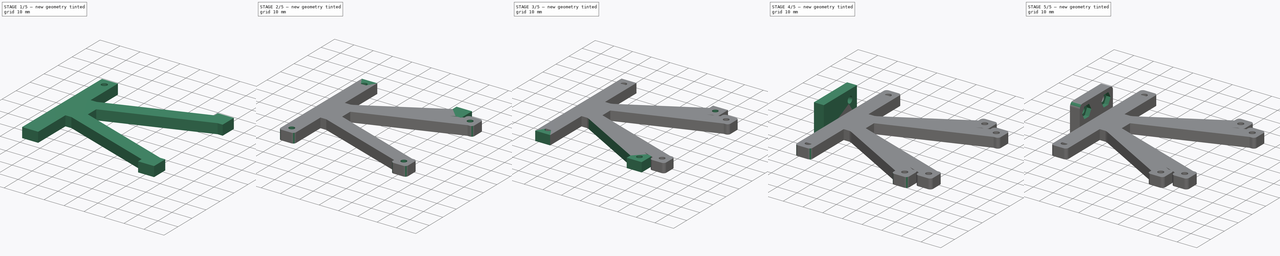
[diagram: build sequence overview — one tinted view per stage of 5, left to right]
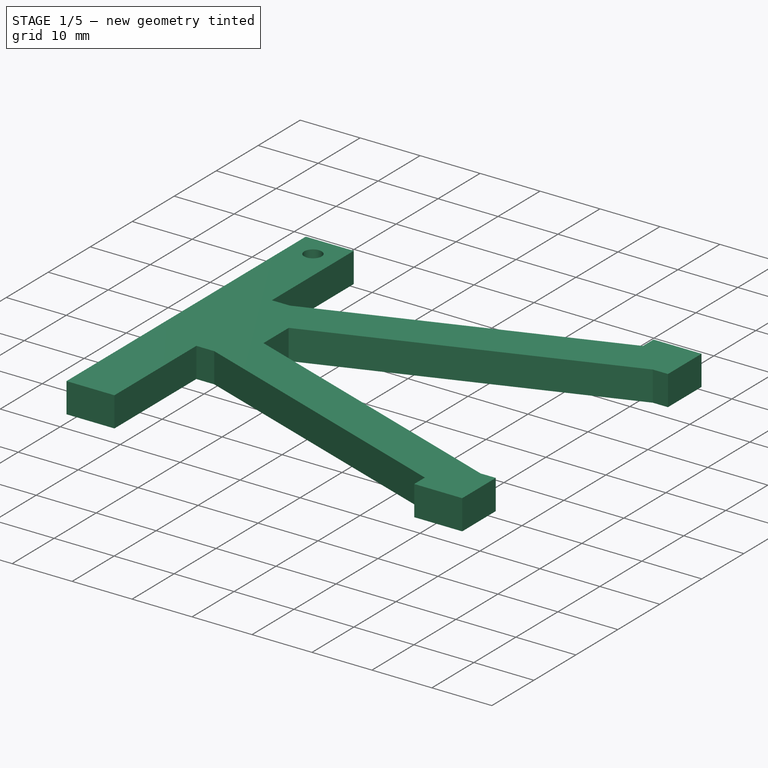
[diagram: stage 1 of 5 — iso view after this stage's code; geometry added in this stage tinted green]
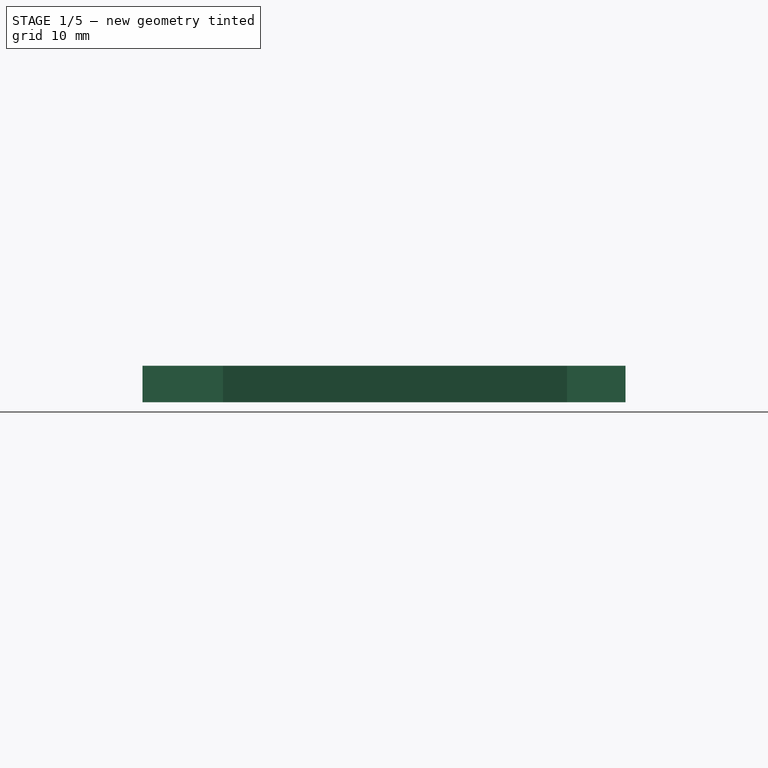
[diagram: stage 1 of 5 — front view after this stage's code; geometry added in this stage tinted green]
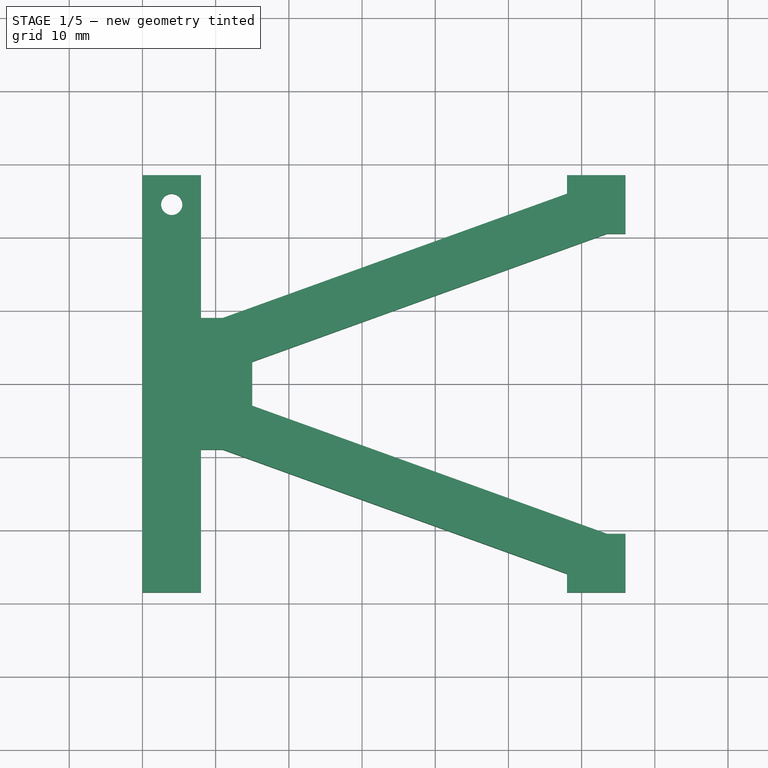
[diagram: stage 1 of 5 — top view after this stage's code; geometry added in this stage tinted green]
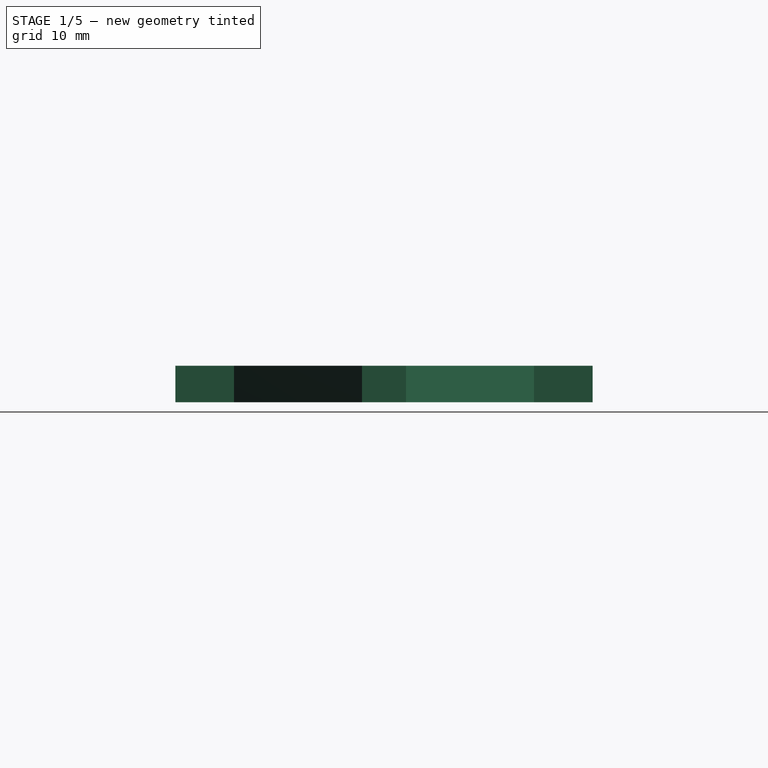
[diagram: stage 1 of 5 — right view after this stage's code; geometry added in this stage tinted green]
FCSTD DOCUMENT  (FreeCAD 0.19R)
Label: hat_holder_top
License: All rights reserved
LicenseURL: http://en.wikipedia.org/wiki/All_rights_reserved
objects: Sketcher::SketchObject×10, PartDesign::Mirrored×5, PartDesign::Pad×4, PartDesign::Hole×3, PartDesign::Pocket×3, PartDesign::Fillet×3, PartDesign::Body×3, PartDesign::LinearPattern×2, PartDesign::MultiTransform×2, PartDesign::Chamfer×1
note: 50 computed .brp shape members not serialized (recipe doc carries the construction recipe); baked Part::Feature solids carry a one-line shape summary decoded from their .brp

FEATURE [PartDesign::Body] Body001  label="hat_holder_a"
  Group = -> [Sketch004,Pad002,Sketch005,Hole001,Sketch006,Pocket001,Mirrored001,MultiTransform,Mirrored002,LinearPattern,Fillet001]
  Origin = -> Origin001
  Placement = pos=(-5,0,0) rot=(0,0,1;0rad)
  Tip = -> Fillet001
FEATURE [Sketcher::SketchObject] Sketch007  label="half_holder_sk001"
  FullyConstrained = true
  MapMode = 5
  Support = -> [XY_Plane002]
  sketch-geometry (12):
    g0: LineSegment StartX=0 StartY=0 StartZ=0 EndX=0 EndY=28.5 EndZ=0
    g1: LineSegment StartX=0 StartY=28.5 StartZ=0 EndX=8 EndY=28.5 EndZ=0
    g2: LineSegment StartX=8 StartY=28.5 StartZ=0 EndX=8 EndY=8.99806 EndZ=0
    g3: LineSegment StartX=8 StartY=8.99806 StartZ=0 EndX=11 EndY=8.99806 EndZ=0
    g4: LineSegment StartX=58 StartY=28.5 StartZ=0 EndX=66 EndY=28.5 EndZ=0
    g5: LineSegment StartX=66 StartY=28.5 StartZ=0 EndX=66 EndY=20.5 EndZ=0
    g6: LineSegment StartX=15 StartY=0 StartZ=0 EndX=0 EndY=0 EndZ=0
    g7: LineSegment StartX=58 StartY=28.5 StartZ=0 EndX=58 EndY=25.968 EndZ=0
    g8: LineSegment StartX=58 StartY=25.968 StartZ=0 EndX=11 EndY=8.99806 EndZ=0
    g9: LineSegment StartX=66 StartY=20.5 StartZ=0 EndX=63.468 EndY=20.5 EndZ=0
    g10: LineSegment StartX=63.468 StartY=20.5 StartZ=0 EndX=15 EndY=3 EndZ=0
    g11: LineSegment StartX=15 StartY=3 StartZ=0 EndX=15 EndY=0 EndZ=0
  constraints (35):
    c: Coincident(g0,g-1)
    c: PointOnObject(g0,g-2)
    c: Coincident(g1,g0)
    c: Horizontal(g1)
    c: Coincident(g2,g1)
    c: Vertical(g2)
    c: Coincident(g3,g2)
    c: Horizontal(g3)
    c: Horizontal(g4)
    c: Coincident(g5,g4)
    c: Vertical(g5)
    c: PointOnObject(g6,g-1)
    c: Coincident(g6,g0)
    c: Distance(g1) = 8
    c: Distance(g0) = 28.5
    c: Horizontal(g4,g0)
    c: Distance(g4) = 8
    c: Distance(g5) = 8
    c: Coincident(g7,g4)
    c: Vertical(g7)
    c: Coincident(g8,g7)
    c: Coincident(g8,g3)
    c: Coincident(g9,g5)
    c: Horizontal(g9)
    c: Coincident(g10,g9)
    c: Parallel(g8,g10)
    c: Distance(g7,g10) = 7
    c: DistanceX(g0,g4) = 66
    c: Coincident(g11,g10)
    c: Coincident(g11,g6)
    c: Vertical(g11)
    c: Equal(g7,g9)
    c: Distance(g6) = 15
    c: Distance(g11) = 3
    c: Equal(g3,g11)
FEATURE [PartDesign::Pad] Pad003  label="half_holder001"
  Direction = (1,1,1)
  Length = 5
  Length2 = 100
  Profile = -> Sketch007
  Type = 0
FEATURE [Sketcher::SketchObject] Sketch008  label="M2on5_hole_sk001"
  FullyConstrained = true
  MapMode = 5
  Placement = pos=(0,0,5) rot=(0,0,1;0rad)
  Support = -> [Pad003]
  sketch-geometry (1):
    g0: Circle CenterX=4 CenterY=24.5 CenterZ=0 NormalX=0 NormalY=0 NormalZ=1 AngleXU=0 Radius=1
  constraints (3):
    c: DistanceY(g-1,g0) = 24.5
    c: DistanceX(g-1,g0) = 4
    c: Radius(g0) = 1
FEATURE [PartDesign::Hole] Hole002  label="M2on5_hole001"
  BaseFeature = -> Pad003
  Depth = 25
  DepthType = 1
  Diameter = 2.9
  DrillForDepth = false
  DrillPoint = 1
  DrillPointAngle = 118
  HoleCutCountersinkAngle = 90
  HoleCutCustomValues = false
  HoleCutDepth = 0
  HoleCutDiameter = 6.1
  HoleCutType = 0
  ModelActualThread = false
  Profile = -> Sketch008
  Tapered = false
  TaperedAngle = 90
  ThreadAngle = 0
  ThreadClass = 0
  ThreadCutOffInner = 0
  ThreadCutOffOuter = 0
  ThreadDirection = 0
  ThreadFit = 0
  ThreadPitch = 0
  ThreadSize = 8
  ThreadType = 1
  Threaded = false
FEATURE [Sketcher::SketchObject] Sketch009  label="M2on5_hex_sk001"
  ExternalGeometry = -> [Hole002]
  FullyConstrained = true
  MapMode = 5
  Placement = pos=(0,0,0) rot=(1,0,0;3.14159rad)
  Support = -> [Hole002]
  sketch-geometry (7):
    g0: LineSegment StartX=5.51554 StartY=-21.875 StartZ=0 EndX=2.48446 EndY=-21.875 EndZ=0
    g1: LineSegment StartX=2.48446 StartY=-21.875 StartZ=0 EndX=0.968911 EndY=-24.5 EndZ=0
    g2: LineSegment StartX=0.968911 StartY=-24.5 StartZ=0 EndX=2.48446 EndY=-27.125 EndZ=0
    g3: LineSegment StartX=2.48446 StartY=-27.125 StartZ=0 EndX=5.51554 EndY=-27.125 EndZ=0
    g4: LineSegment StartX=5.51554 StartY=-27.125 StartZ=0 EndX=7.03109 EndY=-24.5 EndZ=0
    g5: LineSegment StartX=7.03109 StartY=-24.5 StartZ=0 EndX=5.51554 EndY=-21.875 EndZ=0
    g6: Circle CenterX=4 CenterY=-24.5 CenterZ=0 NormalX=0 NormalY=0 NormalZ=1 AngleXU=0 Radius=3.03109
  constraints (16):
    c: Coincident(g0,g1)
    c: Coincident(g1,g2)
    c: Coincident(g2,g3)
    c: Coincident(g3,g4)
    c: Coincident(g4,g5)
    c: Coincident(g5,g0)
    c: Equal(g0, g1-g5) x5
    c: PointOnObject(g0,g6)
    c: PointOnObject(g1,g6)
    c: PointOnObject(g2,g6)
    c: PointOnObject(g3,g6)
    c: PointOnObject(g4,g6)
    c: PointOnObject(g5,g6)
    c: Coincident(g6,g-3)
    c: Horizontal(g4,g1)
    c: DistanceY(g2,g0) = 5.25
FEATURE [PartDesign::Pocket] Pocket002  label="M2on5_hex001"
  BaseFeature = -> Hole002
  Length = 1.75
  Length2 = 100
  Profile = -> Sketch009
  Type = 0
FEATURE [PartDesign::Mirrored] Mirrored003  label="holder001"
  BaseFeature = -> Pocket002
  MirrorPlane = -> XZ_Plane002
  Originals = -> [Pad003]
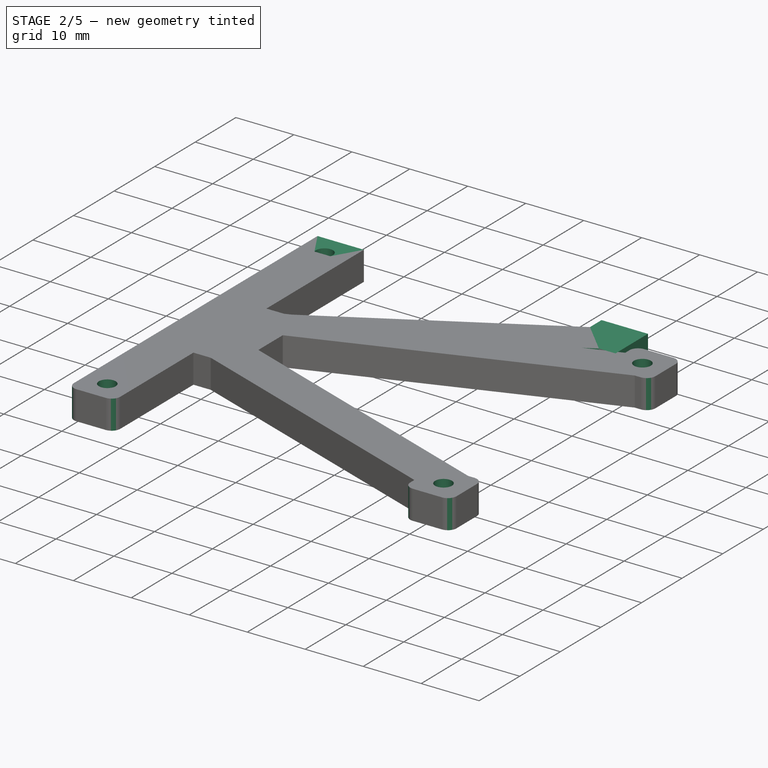
[diagram: stage 2 of 5 — iso view after this stage's code; geometry added in this stage tinted green]
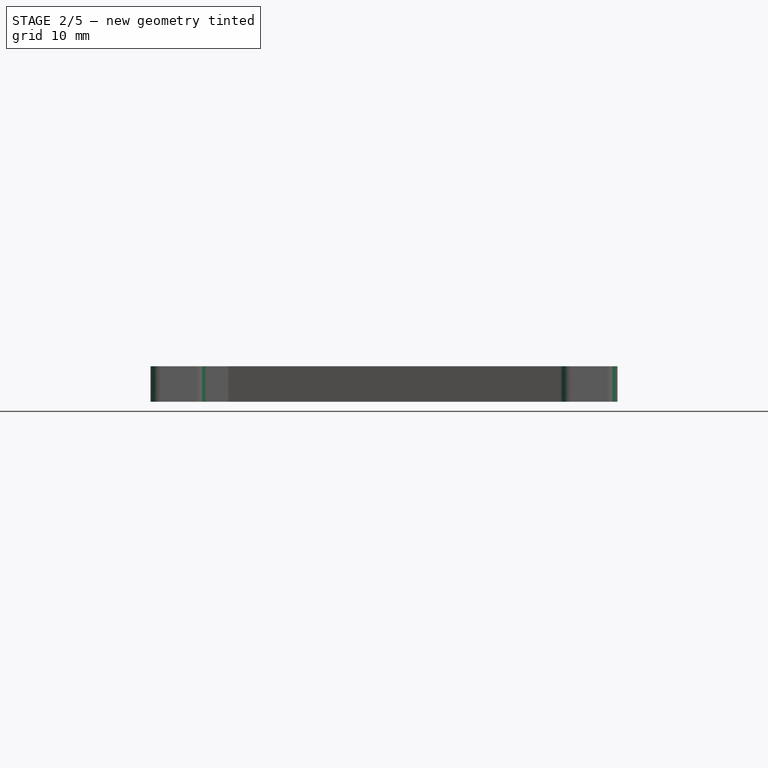
[diagram: stage 2 of 5 — front view after this stage's code; geometry added in this stage tinted green]
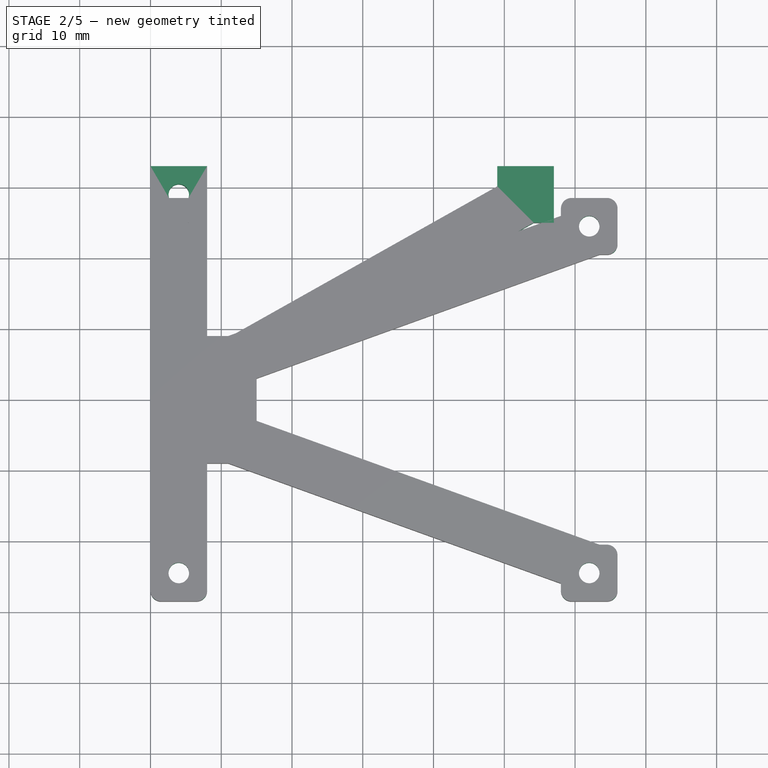
[diagram: stage 2 of 5 — top view after this stage's code; geometry added in this stage tinted green]
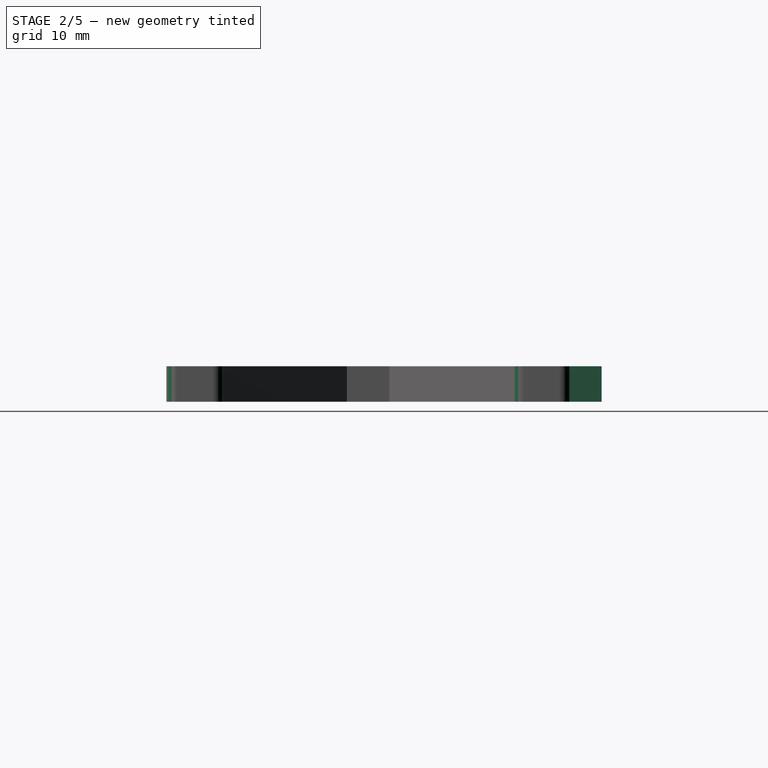
[diagram: stage 2 of 5 — right view after this stage's code; geometry added in this stage tinted green]
FEATURE [PartDesign::Body] Body  label="branch_connector"
  Group = -> [Sketch,Pad,Sketch001,Pad001,Sketch002,Hole,Sketch003,Pocket,Mirrored,Chamfer,Fillet]
  Origin = -> Origin
  Placement = pos=(-5,0,0) rot=(0,0,1;0rad)
  Tip = -> Fillet
FEATURE [Sketcher::SketchObject] Sketch004  label="half_holder_sk"
  FullyConstrained = true
  MapMode = 5
  Support = -> [XY_Plane001]
  sketch-geometry (12):
    g0: LineSegment StartX=0 StartY=0 StartZ=0 EndX=0 EndY=33 EndZ=0
    g1: LineSegment StartX=0 StartY=33 StartZ=0 EndX=8 EndY=33 EndZ=0
    g2: LineSegment StartX=8 StartY=33 StartZ=0 EndX=8 EndY=8.78167 EndZ=0
    g3: LineSegment StartX=8 StartY=8.78167 StartZ=0 EndX=11 EndY=8.78167 EndZ=0
    g4: LineSegment StartX=49 StartY=33 StartZ=0 EndX=57 EndY=33 EndZ=0
    g5: LineSegment StartX=57 StartY=33 StartZ=0 EndX=57 EndY=25 EndZ=0
    g6: LineSegment StartX=15 StartY=0 StartZ=0 EndX=0 EndY=0 EndZ=0
    g7: LineSegment StartX=49 StartY=33 StartZ=0 EndX=49 EndY=30.1406 EndZ=0
    g8: LineSegment StartX=49 StartY=30.1406 StartZ=0 EndX=11 EndY=8.78167 EndZ=0
    g9: LineSegment StartX=57 StartY=25 StartZ=0 EndX=54.1406 EndY=25 EndZ=0
    g10: LineSegment StartX=54.1406 StartY=25 StartZ=0 EndX=15 EndY=3 EndZ=0
    g11: LineSegment StartX=15 StartY=3 StartZ=0 EndX=15 EndY=0 EndZ=0
  constraints (35):
    c: Coincident(g0,g-1)
    c: PointOnObject(g0,g-2)
    c: Coincident(g1,g0)
    c: Horizontal(g1)
    c: Coincident(g2,g1)
    c: Vertical(g2)
    c: Coincident(g3,g2)
    c: Horizontal(g3)
    c: Horizontal(g4)
    c: Coincident(g5,g4)
    c: Vertical(g5)
    c: PointOnObject(g6,g-1)
    c: Coincident(g6,g0)
    c: Distance(g1) = 8
    c: Distance(g0) = 33
    c: Horizontal(g4,g0)
    c: Distance(g4) = 8
    c: Distance(g5) = 8
    c: Coincident(g7,g4)
    c: Vertical(g7)
    c: Coincident(g8,g7)
    c: Coincident(g8,g3)
    c: Coincident(g9,g5)
    c: Horizontal(g9)
    c: Coincident(g10,g9)
    c: Parallel(g8,g10)
    c: Distance(g7,g10) = 7
    c: DistanceX(g0,g4) = 57
    c: Coincident(g11,g10)
    c: Coincident(g11,g6)
    c: Vertical(g11)
    c: Equal(g7,g9)
    c: Distance(g6) = 15
    c: Distance(g11) = 3
    c: Equal(g3,g11)
FEATURE [PartDesign::Pad] Pad002  label="half_holder"
  Direction = (1,1,1)
  Length = 5
  Length2 = 100
  Profile = -> Sketch004
  Type = 0
FEATURE [Sketcher::SketchObject] Sketch005  label="M2on5_hole_sk"
  FullyConstrained = true
  MapMode = 5
  Placement = pos=(0,0,5) rot=(0,0,1;0rad)
  Support = -> [Pad002]
  sketch-geometry (1):
    g0: Circle CenterX=4 CenterY=29 CenterZ=0 NormalX=0 NormalY=0 NormalZ=1 AngleXU=0 Radius=1
  constraints (3):
    c: DistanceY(g-1,g0) = 29
    c: DistanceX(g-1,g0) = 4
    c: Radius(g0) = 1
FEATURE [PartDesign::Hole] Hole001  label="M2on5_hole"
  BaseFeature = -> Pad002
  Depth = 25
  DepthType = 1
  Diameter = 2.9
  DrillForDepth = false
  DrillPoint = 1
  DrillPointAngle = 118
  HoleCutCountersinkAngle = 90
  HoleCutCustomValues = false
  HoleCutDepth = 0
  HoleCutDiameter = 6.1
  HoleCutType = 0
  ModelActualThread = false
  Profile = -> Sketch005
  Tapered = false
  TaperedAngle = 90
  ThreadAngle = 0
  ThreadClass = 0
  ThreadCutOffInner = 0
  ThreadCutOffOuter = 0
  ThreadDirection = 0
  ThreadFit = 0
  ThreadPitch = 0
  ThreadSize = 8
  ThreadType = 1
  Threaded = false
FEATURE [PartDesign::Mirrored] Mirrored004
  MirrorPlane = -> XZ_Plane002
FEATURE [PartDesign::LinearPattern] LinearPattern001
  Direction = -> X_Axis002
  Length = 58
  Occurrences = 2
FEATURE [PartDesign::MultiTransform] MultiTransform001  label="quad_M2on006"
  BaseFeature = -> Mirrored003
  Originals = -> [Hole002,Pocket002]
  Transformations = -> [Mirrored004,LinearPattern001]
FEATURE [PartDesign::Fillet] Fillet002  label="platform_fillet001"
  Base = -> MultiTransform001 [Edge2,Edge117,Edge119,Edge116,Edge8,Edge1,Edge47,Edge49,Edge124,Edge123]
  BaseFeature = -> MultiTransform001
  Radius = 1.5
  SupportTransform = false
FEATURE [PartDesign::Body] Body002  label="hat_holder_b"
  Group = -> [Sketch007,Pad003,Sketch008,Hole002,Sketch009,Pocket002,Mirrored003,MultiTransform001,Mirrored004,LinearPattern001,Fillet002]
  Origin = -> Origin002
  Placement = pos=(-5,0,0) rot=(0,0,1;0rad)
  Tip = -> Fillet002
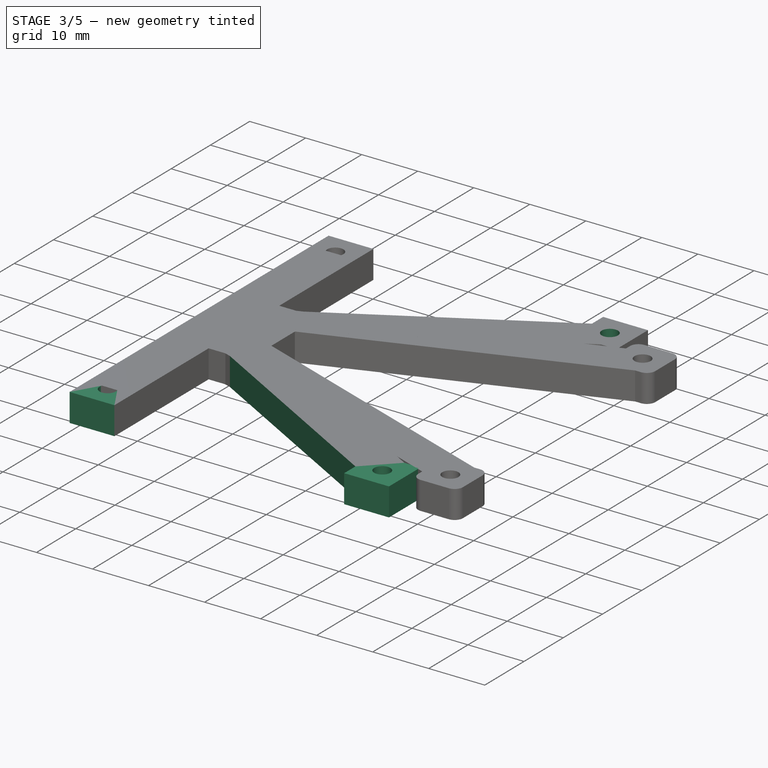
[diagram: stage 3 of 5 — iso view after this stage's code; geometry added in this stage tinted green]
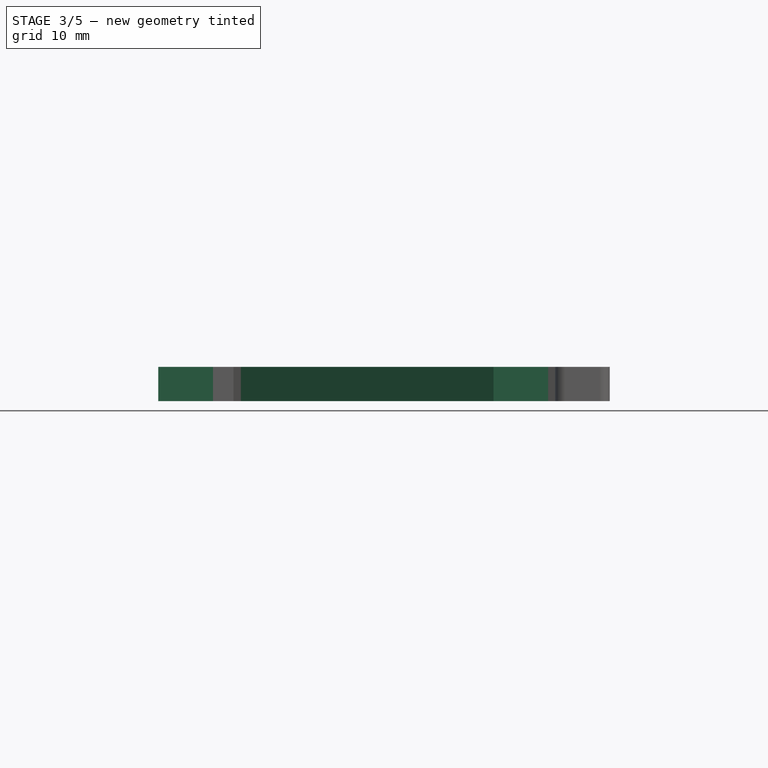
[diagram: stage 3 of 5 — front view after this stage's code; geometry added in this stage tinted green]
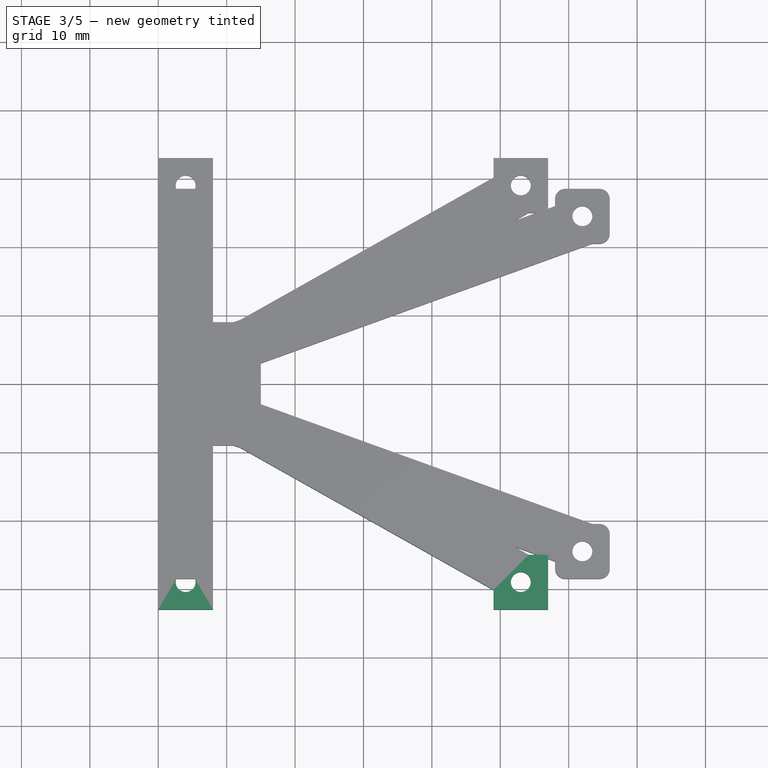
[diagram: stage 3 of 5 — top view after this stage's code; geometry added in this stage tinted green]
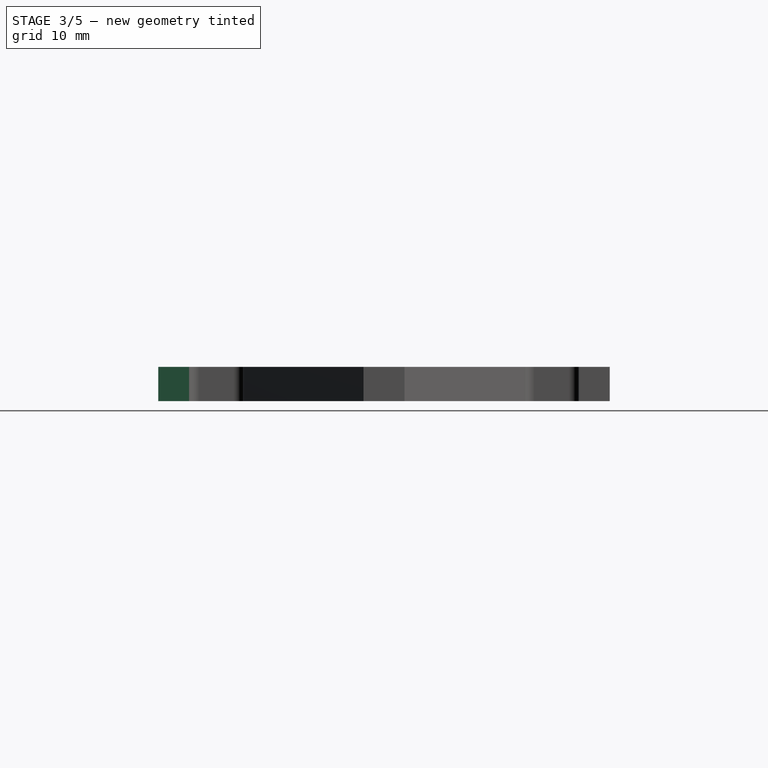
[diagram: stage 3 of 5 — right view after this stage's code; geometry added in this stage tinted green]
FEATURE [Sketcher::SketchObject] Sketch006  label="M2on5_hex_sk"
  ExternalGeometry = -> [Hole001]
  FullyConstrained = true
  MapMode = 5
  Placement = pos=(0,0,0) rot=(1,0,0;3.14159rad)
  Support = -> [Hole001]
  sketch-geometry (7):
    g0: LineSegment StartX=5.51554 StartY=-26.375 StartZ=0 EndX=2.48446 EndY=-26.375 EndZ=0
    g1: LineSegment StartX=2.48446 StartY=-26.375 StartZ=0 EndX=0.968911 EndY=-29 EndZ=0
    g2: LineSegment StartX=0.968911 StartY=-29 StartZ=0 EndX=2.48446 EndY=-31.625 EndZ=0
    g3: LineSegment StartX=2.48446 StartY=-31.625 StartZ=0 EndX=5.51554 EndY=-31.625 EndZ=0
    g4: LineSegment StartX=5.51554 StartY=-31.625 StartZ=0 EndX=7.03109 EndY=-29 EndZ=0
    g5: LineSegment StartX=7.03109 StartY=-29 StartZ=0 EndX=5.51554 EndY=-26.375 EndZ=0
    g6: Circle CenterX=4 CenterY=-29 CenterZ=0 NormalX=0 NormalY=0 NormalZ=1 AngleXU=0 Radius=3.03109
  constraints (16):
    c: Coincident(g0,g1)
    c: Coincident(g1,g2)
    c: Coincident(g2,g3)
    c: Coincident(g3,g4)
    c: Coincident(g4,g5)
    c: Coincident(g5,g0)
    c: Equal(g0, g1-g5) x5
    c: PointOnObject(g0,g6)
    c: PointOnObject(g1,g6)
    c: PointOnObject(g2,g6)
    c: PointOnObject(g3,g6)
    c: PointOnObject(g4,g6)
    c: PointOnObject(g5,g6)
    c: Coincident(g6,g-3)
    c: Horizontal(g4,g1)
    c: DistanceY(g2,g0) = 5.25
FEATURE [PartDesign::Pocket] Pocket001  label="M2on5_hex"
  BaseFeature = -> Hole001
  Length = 1.75
  Length2 = 100
  Profile = -> Sketch006
  Type = 0
FEATURE [PartDesign::Mirrored] Mirrored001  label="holder"
  BaseFeature = -> Pocket001
  MirrorPlane = -> XZ_Plane001
  Originals = -> [Pad002]
FEATURE [PartDesign::Mirrored] Mirrored002
  MirrorPlane = -> XZ_Plane001
FEATURE [PartDesign::LinearPattern] LinearPattern
  Direction = -> X_Axis001
  Length = 49
  Occurrences = 2
FEATURE [PartDesign::MultiTransform] MultiTransform  label="quad_M2on5"
  BaseFeature = -> Mirrored001
  Originals = -> [Hole001,Pocket001]
  Transformations = -> [Mirrored002,LinearPattern]
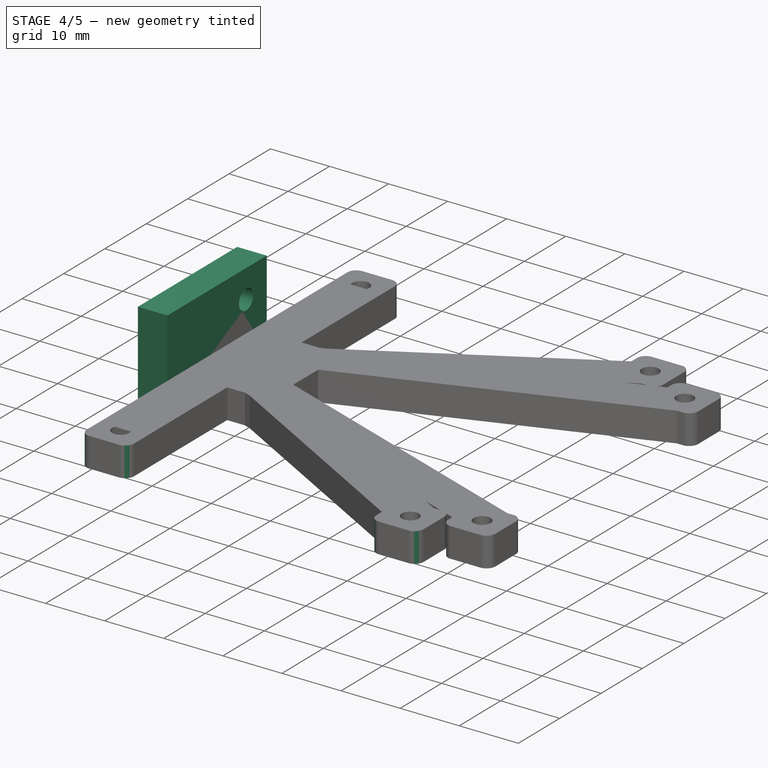
[diagram: stage 4 of 5 — iso view after this stage's code; geometry added in this stage tinted green]
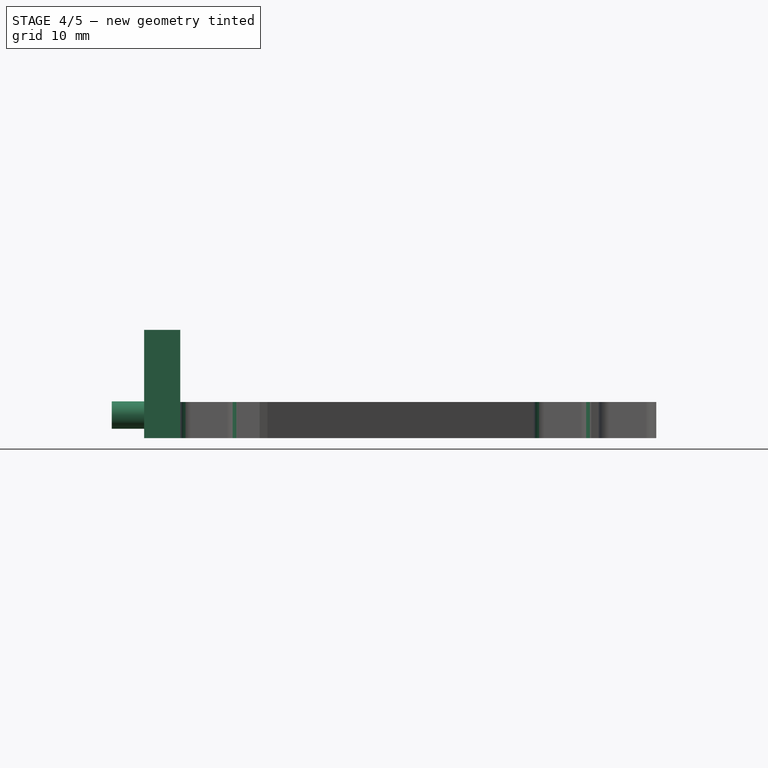
[diagram: stage 4 of 5 — front view after this stage's code; geometry added in this stage tinted green]
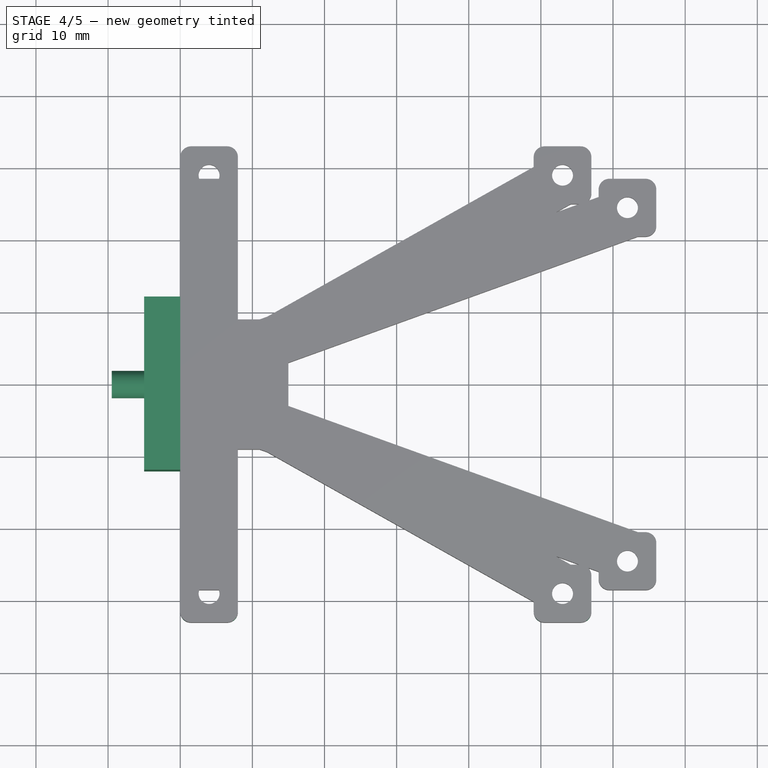
[diagram: stage 4 of 5 — top view after this stage's code; geometry added in this stage tinted green]
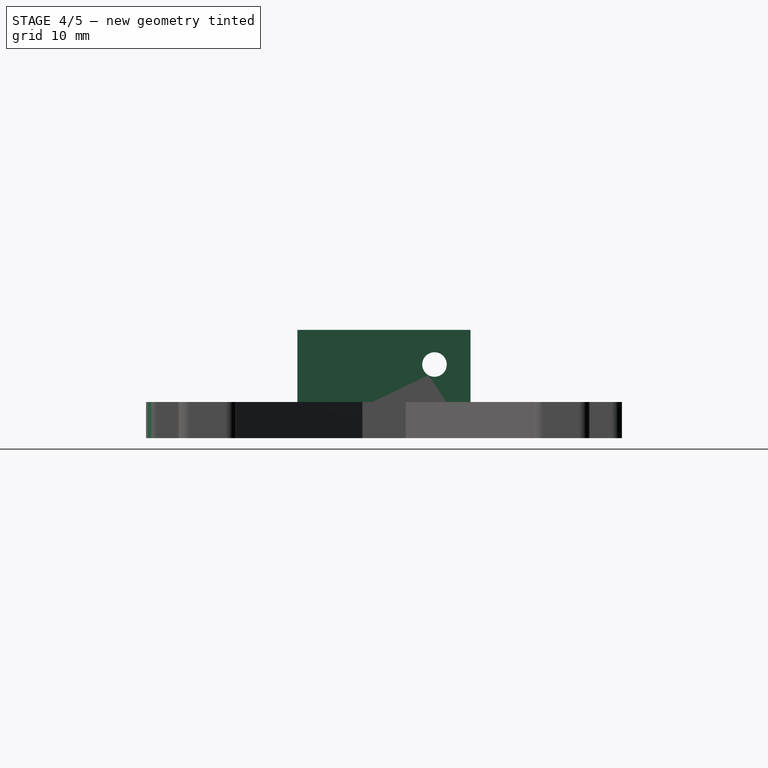
[diagram: stage 4 of 5 — right view after this stage's code; geometry added in this stage tinted green]
FEATURE [Sketcher::SketchObject] Sketch  label="conn_base_sk"
  FullyConstrained = true
  MapMode = 5
  Placement = pos=(0,0,0) rot=(0.57735,0.57735,0.57735;2.0944rad)
  Support = -> [YZ_Plane]
  sketch-geometry (4):
    g0: LineSegment StartX=-12 StartY=0 StartZ=0 EndX=12 EndY=0 EndZ=0
    g1: LineSegment StartX=12 StartY=0 StartZ=0 EndX=12 EndY=15 EndZ=0
    g2: LineSegment StartX=12 StartY=15 StartZ=0 EndX=-12 EndY=15 EndZ=0
    g3: LineSegment StartX=-12 StartY=15 StartZ=0 EndX=-12 EndY=0 EndZ=0
  constraints (11):
    c: Coincident(g0,g1)
    c: Coincident(g1,g2)
    c: Coincident(g2,g3)
    c: Coincident(g3,g0)
    c: Horizontal(g2)
    c: Vertical(g1)
    c: Vertical(g3)
    c: PointOnObject(g0,g-1)
    c: Symmetric(g0,g0,g-2)
    c: Distance(g1) = 15
    c: Distance(g2) = 24
FEATURE [PartDesign::Pad] Pad  label="conn_base"
  Direction = (1,1,1)
  Length = 5
  Length2 = 100
  Placement = pos=(0,0,0) rot=(0.57735,0.57735,0.57735;2.0944rad)
  Profile = -> Sketch
  Reversed = true
  Type = 0
FEATURE [Sketcher::SketchObject] Sketch001  label="dowel_pin_sk"
  FullyConstrained = true
  MapMode = 5
  Placement = pos=(-5,1.1e-15,-1.1e-15) rot=(0.57735,0.57735,-0.57735;4.18879rad)
  Support = -> [Pad]
  sketch-geometry (1):
    g0: Circle CenterX=0 CenterY=-3.2 CenterZ=0 NormalX=0 NormalY=0 NormalZ=1 AngleXU=0 Radius=1.9
  constraints (3):
    c: PointOnObject(g0,g-2)
    c: DistanceY(g0,g-1) = 3.2
    c: Radius(g0) = 1.9
FEATURE [PartDesign::Pad] Pad001  label="dowel_pin"
  BaseFeature = -> Pad
  Direction = (1,1,1)
  Length = 4.5
  Length2 = 100
  Placement = pos=(0,0,0) rot=(0.57735,0.57735,0.57735;2.0944rad)
  Profile = -> Sketch001
  Type = 0
FEATURE [Sketcher::SketchObject] Sketch002  label="M3_hole_sk"
  ExternalGeometry = -> [Pad001]
  FullyConstrained = true
  MapMode = 5
  Placement = pos=(-5,1.1e-15,-1.1e-15) rot=(0.57735,0.57735,-0.57735;4.18879rad)
  Support = -> [Pad001]
  sketch-geometry (1):
    g0: Circle CenterX=7 CenterY=-10.2 CenterZ=0 NormalX=0 NormalY=0 NormalZ=1 AngleXU=0 Radius=1
  constraints (3):
    c: DistanceY(g0,g-3) = 7
    c: DistanceX(g-1,g0) = 7
    c: Radius(g0) = 1
FEATURE [PartDesign::Hole] Hole  label="M3_hole"
  BaseFeature = -> Pad001
  Depth = 25
  DepthType = 1
  Diameter = 3.4
  DrillForDepth = false
  DrillPoint = 1
  DrillPointAngle = 118
  HoleCutCountersinkAngle = 90
  HoleCutCustomValues = false
  HoleCutDepth = 0
  HoleCutDiameter = 6.1
  HoleCutType = 0
  ModelActualThread = false
  Placement = pos=(0,0,0) rot=(0.57735,0.57735,0.57735;2.0944rad)
  Profile = -> Sketch002
  Tapered = false
  TaperedAngle = 90
  ThreadAngle = 0
  ThreadClass = 0
  ThreadCutOffInner = 0
  ThreadCutOffOuter = 0
  ThreadDirection = 0
  ThreadFit = 0
  ThreadPitch = 0
  ThreadSize = 9
  ThreadType = 1
  Threaded = false
FEATURE [PartDesign::Fillet] Fillet001  label="platform_fillet"
  Base = -> MultiTransform [Edge2,Edge117,Edge119,Edge116,Edge8,Edge1,Edge47,Edge49,Edge124,Edge123]
  BaseFeature = -> MultiTransform
  Radius = 1.5
  SupportTransform = false
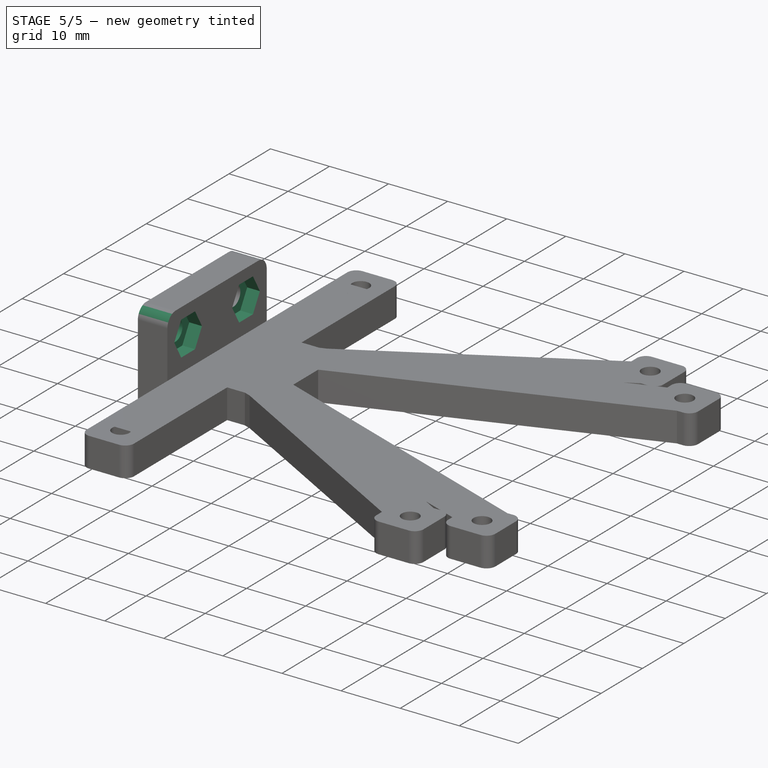
[diagram: stage 5 of 5 — iso view after this stage's code; geometry added in this stage tinted green]
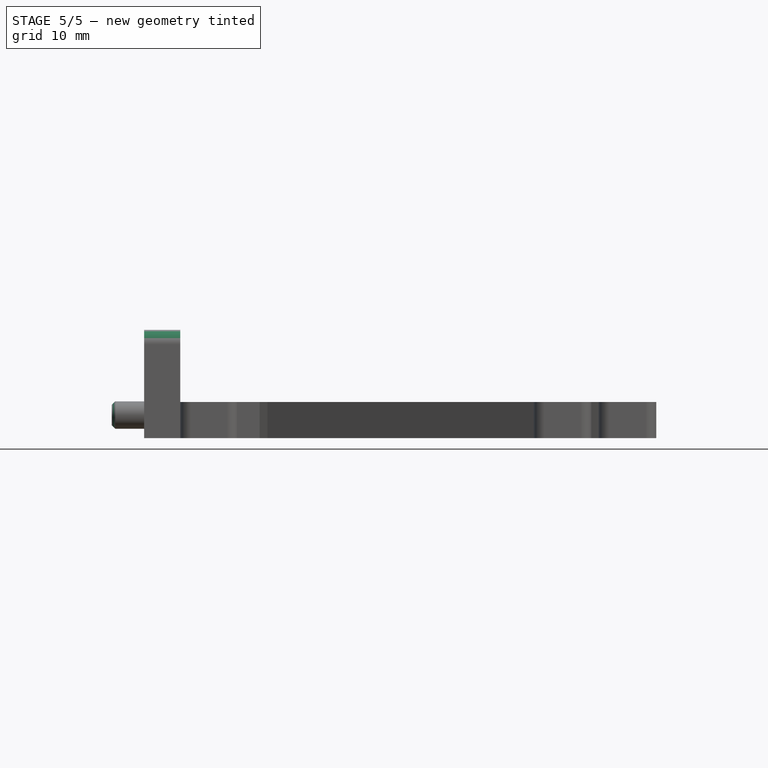
[diagram: stage 5 of 5 — front view after this stage's code; geometry added in this stage tinted green]
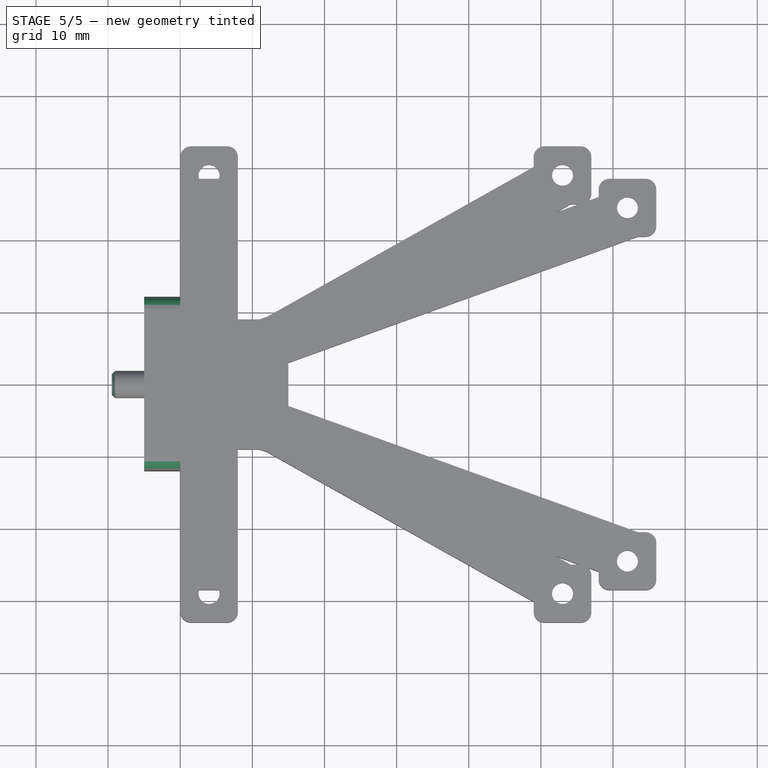
[diagram: stage 5 of 5 — top view after this stage's code; geometry added in this stage tinted green]
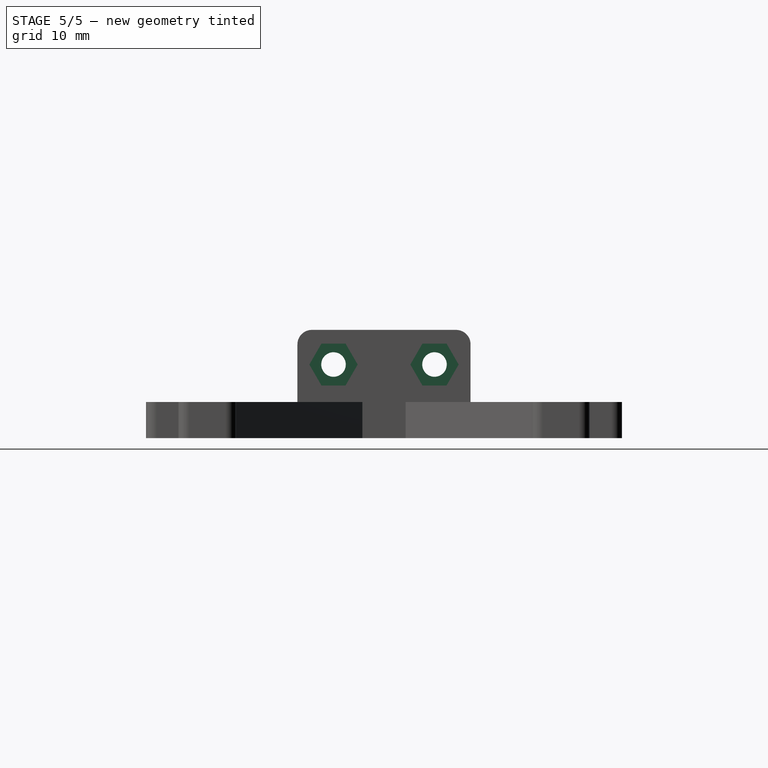
[diagram: stage 5 of 5 — right view after this stage's code; geometry added in this stage tinted green]
FEATURE [Sketcher::SketchObject] Sketch003  label="M3_hex_sk"
  ExternalGeometry = -> [Hole]
  FullyConstrained = true
  MapMode = 5
  Placement = pos=(0,0,0) rot=(0.57735,0.57735,0.57735;2.0944rad)
  Support = -> [Hole]
  sketch-geometry (7):
    g0: LineSegment StartX=3.65137 StartY=10.2 StartZ=0 EndX=5.32568 EndY=7.3 EndZ=0
    g1: LineSegment StartX=5.32568 StartY=7.3 StartZ=0 EndX=8.67432 EndY=7.3 EndZ=0
    g2: LineSegment StartX=8.67432 StartY=7.3 StartZ=0 EndX=10.3486 EndY=10.2 EndZ=0
    g3: LineSegment StartX=10.3486 StartY=10.2 StartZ=0 EndX=8.67432 EndY=13.1 EndZ=0
    g4: LineSegment StartX=8.67432 StartY=13.1 StartZ=0 EndX=5.32568 EndY=13.1 EndZ=0
    g5: LineSegment StartX=5.32568 StartY=13.1 StartZ=0 EndX=3.65137 EndY=10.2 EndZ=0
    g6: Circle CenterX=7 CenterY=10.2 CenterZ=0 NormalX=0 NormalY=0 NormalZ=1 AngleXU=0 Radius=3.34863
  constraints (16):
    c: Coincident(g0,g1)
    c: Coincident(g1,g2)
    c: Coincident(g2,g3)
    c: Coincident(g3,g4)
    c: Coincident(g4,g5)
    c: Coincident(g5,g0)
    c: Equal(g0, g1-g5) x5
    c: PointOnObject(g0,g6)
    c: PointOnObject(g1,g6)
    c: PointOnObject(g2,g6)
    c: PointOnObject(g3,g6)
    c: PointOnObject(g4,g6)
    c: PointOnObject(g5,g6)
    c: Coincident(g6,g-3)
    c: Horizontal(g0,g2)
    c: Distance(g4,g0) = 5.8
FEATURE [PartDesign::Pocket] Pocket  label="M3_hex"
  BaseFeature = -> Hole
  Length = 2.15
  Length2 = 100
  Placement = pos=(0,0,0) rot=(0.57735,0.57735,0.57735;2.0944rad)
  Profile = -> Sketch003
  Type = 0
FEATURE [PartDesign::Mirrored] Mirrored  label="dual_M3"
  BaseFeature = -> Pocket
  MirrorPlane = -> XZ_Plane
  Originals = -> [Hole,Pocket]
  Placement = pos=(0,0,0) rot=(0.57735,0.57735,0.57735;2.0944rad)
FEATURE [PartDesign::Chamfer] Chamfer  label="dowel_pin_chamfer"
  Angle = 45
  Base = -> Mirrored [Face24]
  BaseFeature = -> Mirrored
  ChamferType = 0
  FlipDirection = false
  Placement = pos=(0,0,0) rot=(0.57735,0.57735,0.57735;2.0944rad)
  Size = 0.5
  Size2 = 1
  SupportTransform = false
FEATURE [PartDesign::Fillet] Fillet  label="corner_fillet"
  Base = -> Chamfer [Edge17,Edge15]
  BaseFeature = -> Chamfer
  Placement = pos=(0,0,0) rot=(0.57735,0.57735,0.57735;2.0944rad)
  Radius = 2
  SupportTransform = false
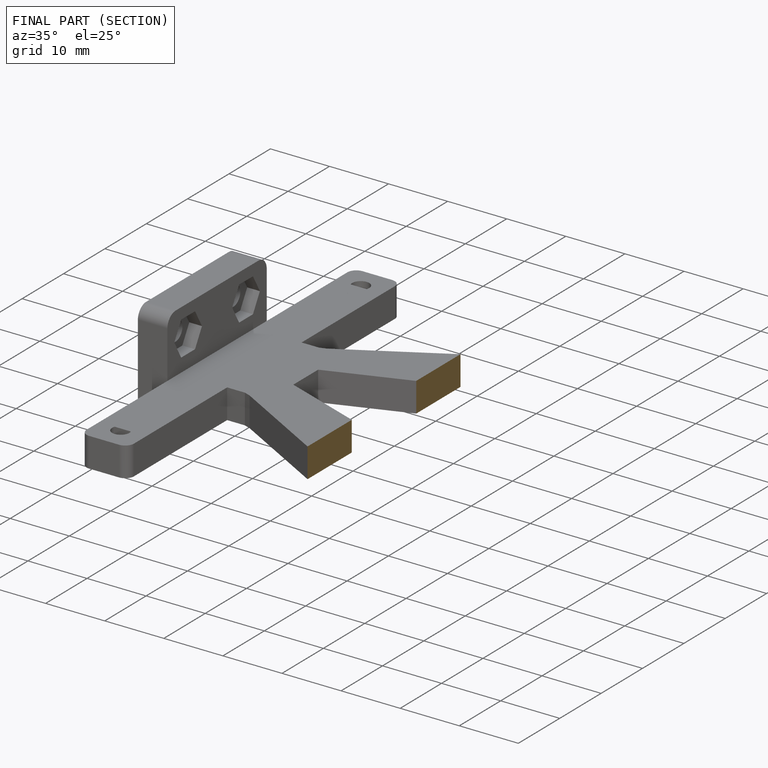
[diagram: finished part — half-section view (interior)]
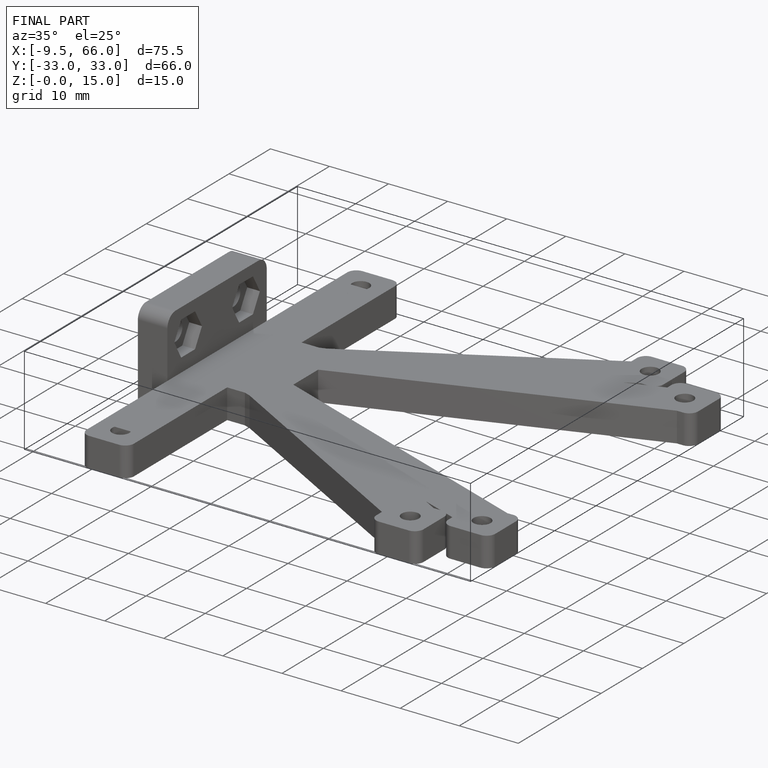
[diagram: finished part — iso view with bounding-box wireframe]
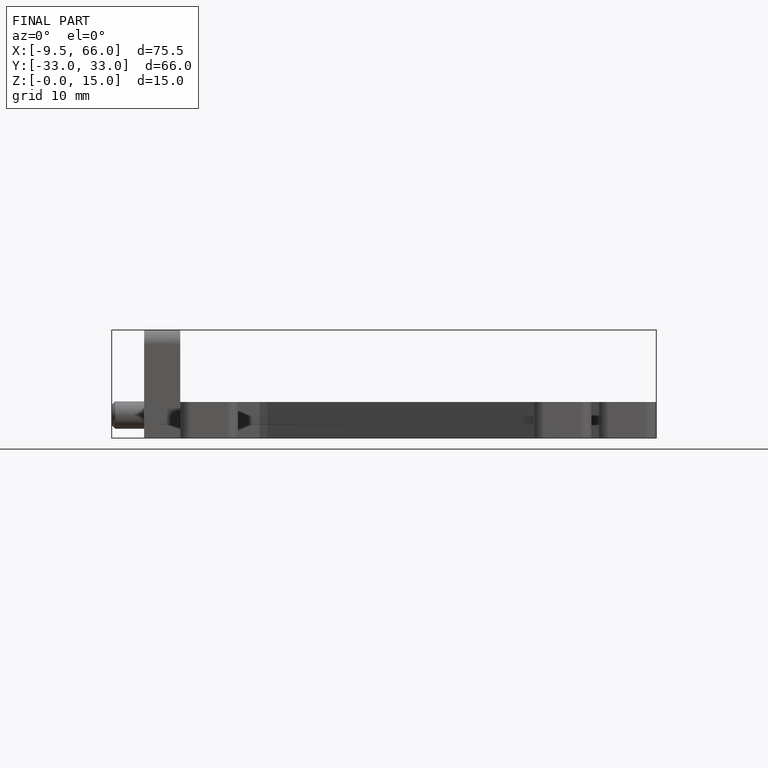
[diagram: finished part — front view with bounding-box wireframe]
